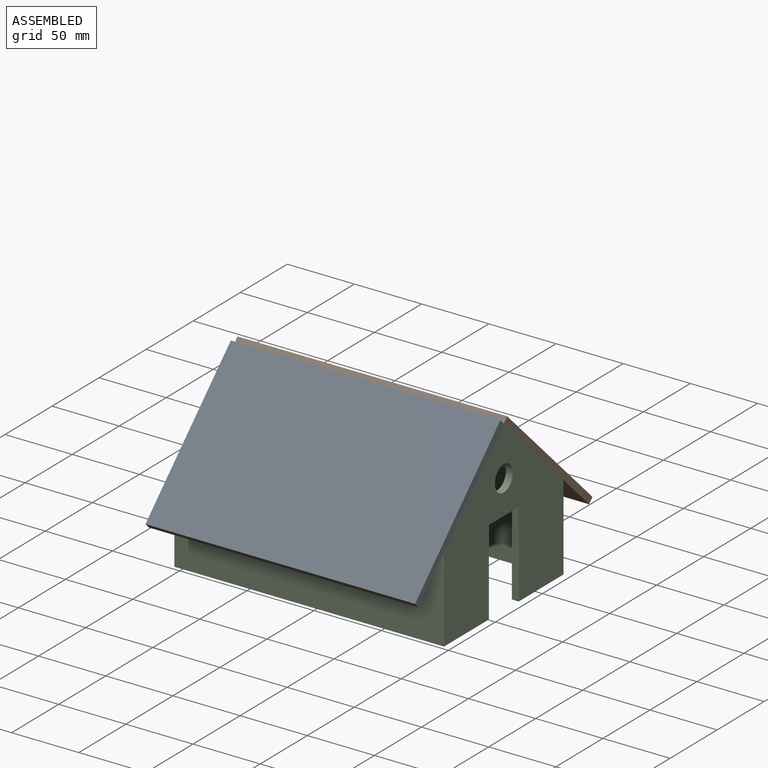
[diagram: assembled view]
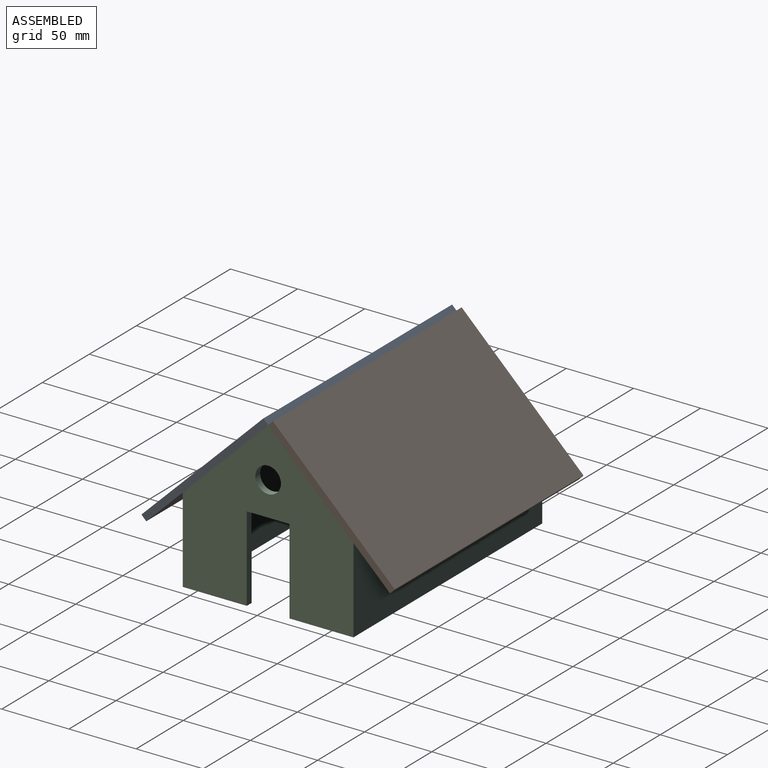
[diagram: assembled view, second angle]
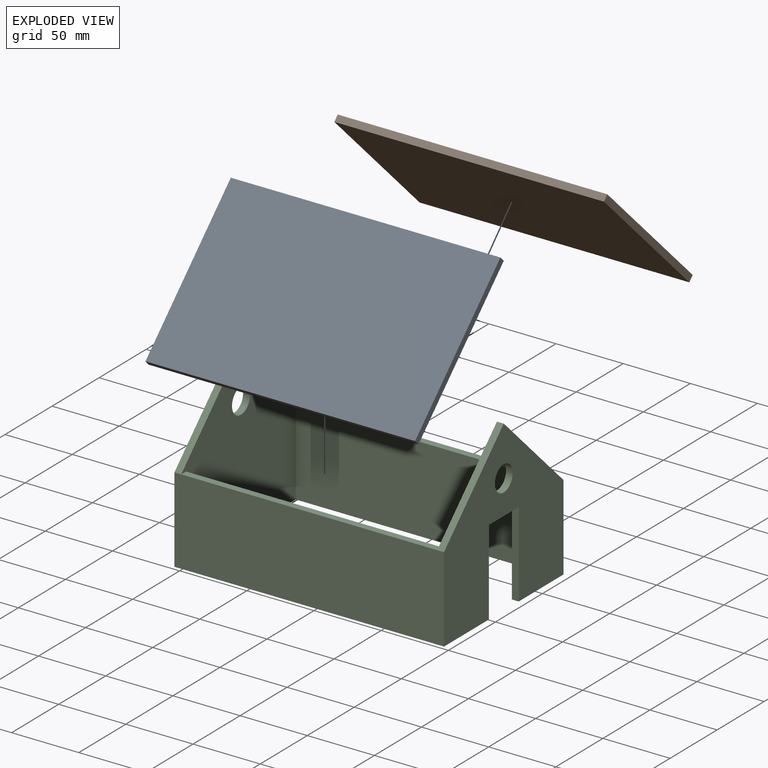
[diagram: exploded view]
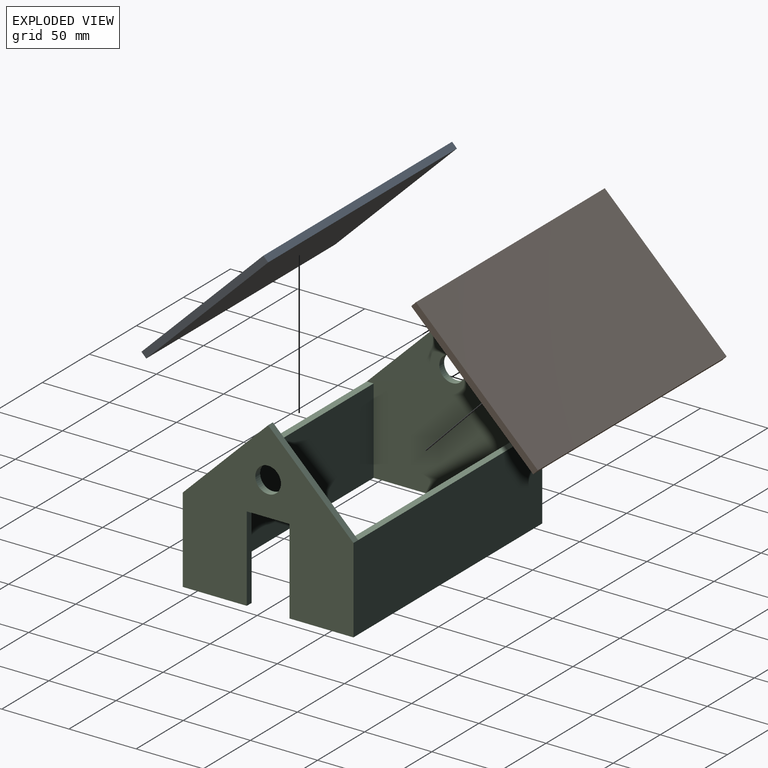
[diagram: exploded view, second angle]
ASSEMBLY  parts=3 mates=2
PART A: 6 faces, bbox 200.7x5.1x127 mm
  f0: plane 127x5.08mm, normal (-1,0,0), area 645.2mm2, adj f1,f3,f4,f5
  f1: plane 200.66x5.08mm, normal (0,0,-1), area 1019.4mm2, adj f0,f2,f4,f5
  f2: plane 127x5.08mm, normal (1,0,0), area 645.2mm2, adj f1,f3,f4,f5
  f3: plane 200.66x5.08mm, normal (0,0,1), area 1019.4mm2, adj f0,f2,f4,f5
  f4: plane 200.66x127mm, normal (0,-1,0), area 25483.8mm2, adj f0,f1,f2,f3
  f5: plane 200.66x127mm, normal (0,1,0), area 25483.8mm2, adj f0,f1,f2,f3
PART B: 6 faces, bbox 200.7x5.1x127 mm
  f0: plane 127x5.08mm, normal (1,0,0), area 645.2mm2, adj f1,f3,f4,f5
  f1: plane 200.66x5.08mm, normal (0,0,1), area 1019.4mm2, adj f0,f2,f4,f5
  f2: plane 127x5.08mm, normal (-1,0,0), area 645.2mm2, adj f1,f3,f4,f5
  f3: plane 200.66x5.08mm, normal (0,0,-1), area 1019.4mm2, adj f0,f2,f4,f5
  f4: plane 200.66x127mm, normal (0,-1,0), area 25483.8mm2, adj f0,f1,f2,f3
  f5: plane 200.66x127mm, normal (0,1,0), area 25483.8mm2, adj f0,f1,f2,f3
PART C: 20 faces, bbox 200.7x127x125.7 mm
  f0: plane 127x125.72mm, normal (1,0,0), area 11085.1mm2, adj f1,f2,f4,f10,f11,f13,f14,f18
  f1: plane 200.66x127mm, normal (0,0,-1), area 3064.5mm2, adj f0,f3,f4,f5,f6,f9,f12,f14
  f2: plane 190.5x5.08mm, normal (0,0,1), area 967.7mm2, adj f0,f3,f4,f5
  f3: plane 200.66x63.5mm, normal (0,-1,0), area 12741.9mm2, adj f1,f2,f8,f9,f10,f12
  f4: plane 190.5x63.5mm, normal (0,1,0), area 12096.8mm2, adj f0,f1,f2,f5
  f5: plane 127x125.72mm, normal (-1,0,0), area 9069mm2, adj f1,f2,f4,f7,f8,f13,f14,f15
  f6: plane 200.66x63.5mm, normal (0,1,0), area 12741.9mm2, adj f1,f7,f9,f11,f12,f13
  f7: plane 63.5x62.22mm, normal (0,0.7,0.71), area 451.6mm2, adj f5,f6,f8,f9
  f8: plane 63.5x62.22mm, normal (0,-0.7,0.71), area 451.6mm2, adj f3,f5,f7,f9
  f9: plane 127x125.72mm, normal (1,0,0), area 9714.1mm2, adj f1,f3,f6,f7,f8,f15,f16,f17
  f10: plane 63.5x62.22mm, normal (0,-0.7,0.71), area 451.6mm2, adj f0,f3,f11,f12
  f11: plane 63.5x62.22mm, normal (0,0.7,0.71), area 451.6mm2, adj f0,f6,f10,f12
  f12: plane 127x125.72mm, normal (-1,0,0), area 11730.3mm2, adj f1,f3,f6,f10,f11,f18
  f13: plane 190.5x5.08mm, normal (0,0,1), area 967.7mm2, adj f0,f5,f6,f14
  f14: plane 190.5x63.5mm, normal (0,-1,0), area 12096.8mm2, adj f0,f1,f5,f13
  f15: plane 31.75x5.08mm, normal (0,0,-1), area 161.3mm2, adj f5,f9,f16,f17
  f16: plane 63.5x5.08mm, normal (0,-1,0), area 322.6mm2, adj f1,f5,f9,f15
  f17: plane 63.5x5.08mm, normal (0,1,0), area 322.6mm2, adj f1,f5,f9,f15
  f18: cylinder r=9.53mm len=19.05mm, axis (1,0,0), area 304mm2, adj f0,f12
  f19: cylinder r=9.53mm len=19.05mm, axis (1,0,0), area 304mm2, adj f5,f9
PLACE A rot(axis=(-1,0,0),45.6deg) t=(-0.32,-73.7,-35.48)mm
PLACE B rot(axis=(1,0,0),45.6deg) t=(140.08,-16.85,174.83)mm
PLACE C at identity
MATE fastened A.f5 <-> C.f8  axis (0,0.7,-0.71) through (0,13.06,49.53)mm
MATE fastened B.f4 <-> C.f11  axis (0,-0.7,-0.71) through (0,103.78,49.53)mm
